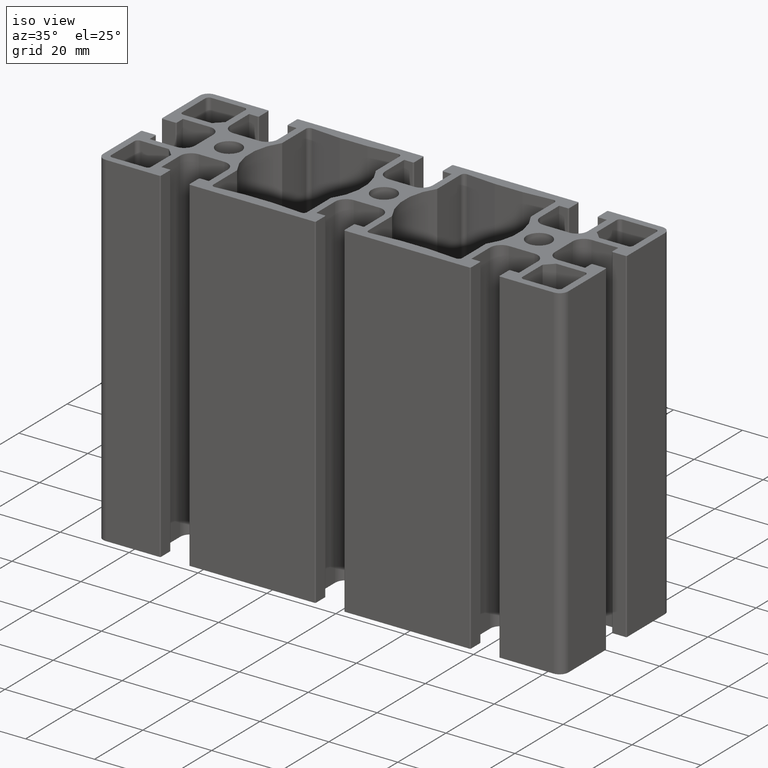
[diagram: clean part render]
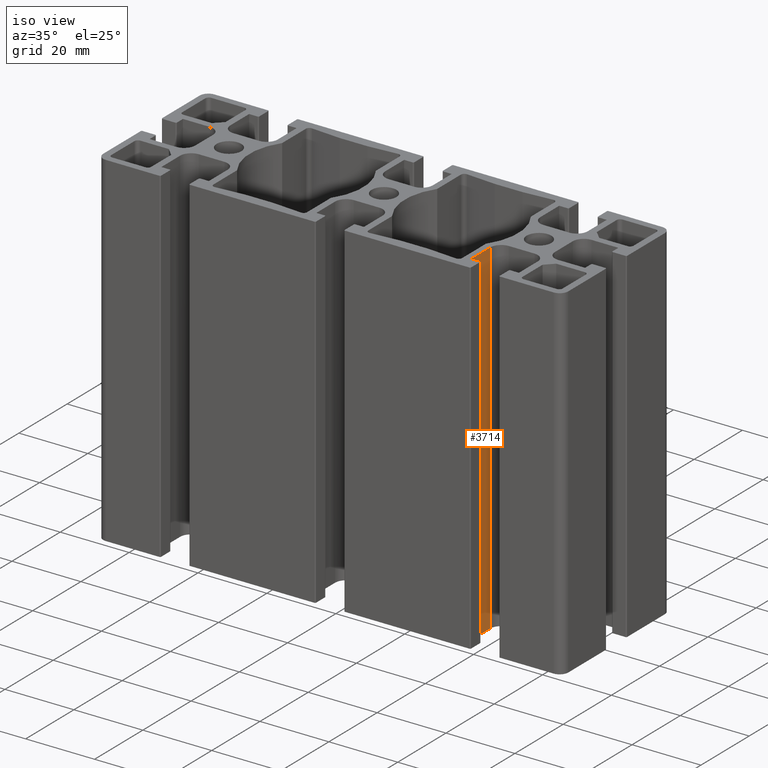
[diagram: same view with one face highlighted and labeled with its STEP entity id]
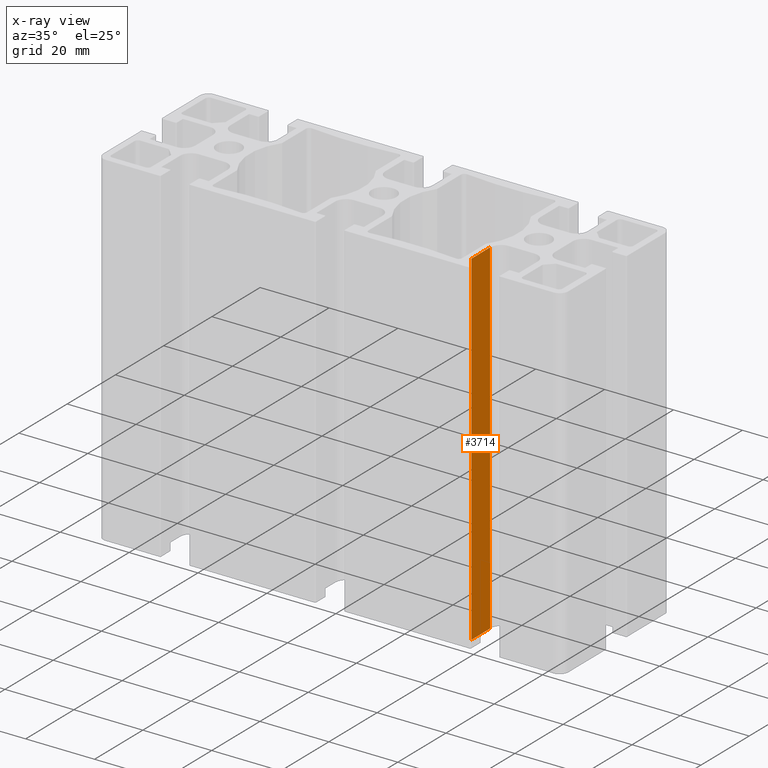
[diagram: x-ray of the same camera — body ghosted, the highlighted face saturated]
A machine part, iso view. The second image highlights one B-rep face of the part: STEP entity #3714.
The next image is the same camera in x-ray: the body ghosted, the highlighted face saturated — about 0% of this face is hidden behind the body in this view.
In plain terms, the highlighted planar face has unit normal (-1, 0, 0).
Its self-contained STEP definition (entity closure, byte-faithful):
#357=FACE_OUTER_BOUND('',#546,.T.);
#546=EDGE_LOOP('',(#2740,#2741,#2742,#2743));
#853=LINE('',#5785,#1253);
#854=LINE('',#5789,#1254);
#855=LINE('',#5791,#1255);
#856=LINE('',#5792,#1256);
#1253=VECTOR('',#4669,100.);
#1254=VECTOR('',#4674,7.8);
#1255=VECTOR('',#4675,100.);
#1256=VECTOR('',#4676,7.8);
#1650=VERTEX_POINT('',#5782);
#1651=VERTEX_POINT('',#5784);
#1652=VERTEX_POINT('',#5788);
#1653=VERTEX_POINT('',#5790);
#2102=EDGE_CURVE('',#1651,#1650,#853,.T.);
#2104=EDGE_CURVE('',#1652,#1650,#854,.T.);
#2105=EDGE_CURVE('',#1653,#1652,#855,.T.);
#2106=EDGE_CURVE('',#1651,#1653,#856,.T.);
#2740=ORIENTED_EDGE('',*,*,#2104,.F.);
#2741=ORIENTED_EDGE('',*,*,#2105,.F.);
#2742=ORIENTED_EDGE('',*,*,#2106,.F.);
#2743=ORIENTED_EDGE('',*,*,#2102,.T.);
#3566=PLANE('',#3981);
#3714=ADVANCED_FACE('',(#357),#3566,.F.);
#3981=AXIS2_PLACEMENT_3D('',#5787,#4672,#4673);
#4669=DIRECTION('',(0.,0.,1.));
#4672=DIRECTION('center_axis',(-1.,0.,0.));
#4673=DIRECTION('ref_axis',(0.,0.,1.));
#4674=DIRECTION('',(0.,1.,0.));
#4675=DIRECTION('',(0.,0.,1.));
#4676=DIRECTION('',(0.,-1.,0.));
#5782=CARTESIAN_POINT('',(38.10000000001,-10.39999999999,100.));
#5784=CARTESIAN_POINT('',(38.10000000001,-10.39999999999,0.));
#5785=CARTESIAN_POINT('',(38.10000000001,-10.39999999999,0.));
#5787=CARTESIAN_POINT('Origin',(38.10000000001,-18.19999999999,0.));
#5788=CARTESIAN_POINT('',(38.10000000001,-18.19999999999,100.));
#5789=CARTESIAN_POINT('',(38.10000000001,-9.09999999999501,100.));
#5790=CARTESIAN_POINT('',(38.10000000001,-18.19999999999,0.));
#5791=CARTESIAN_POINT('',(38.10000000001,-18.19999999999,0.));
#5792=CARTESIAN_POINT('',(38.10000000001,-9.09999999999501,0.));